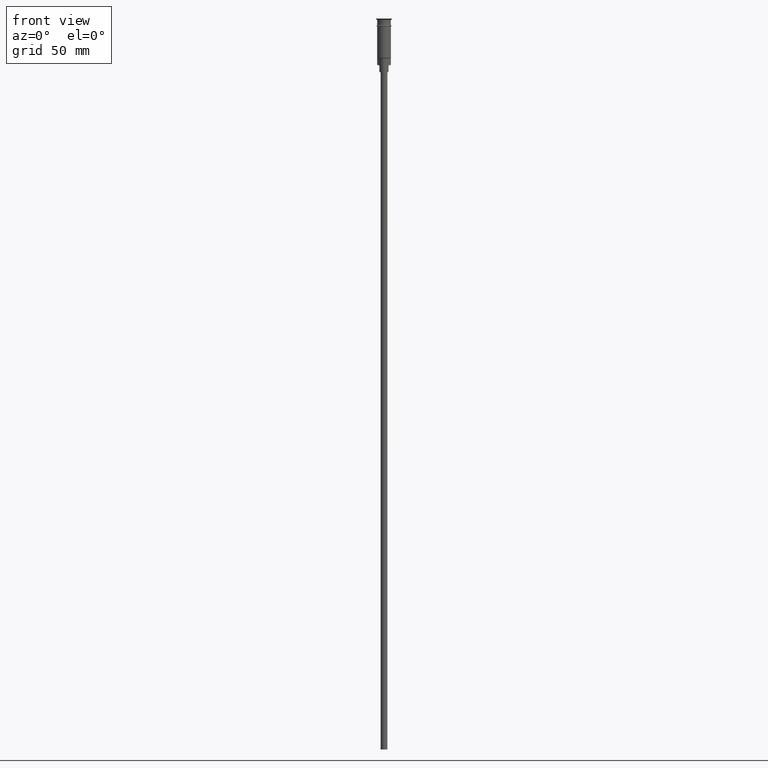
[diagram: clean part render]
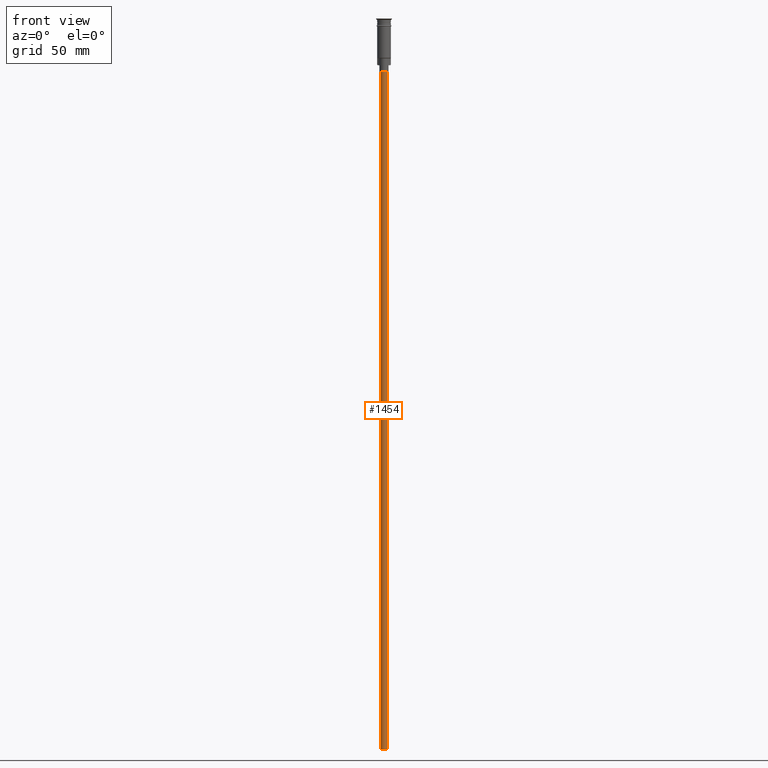
[diagram: same view with one face highlighted and labeled with its STEP entity id]
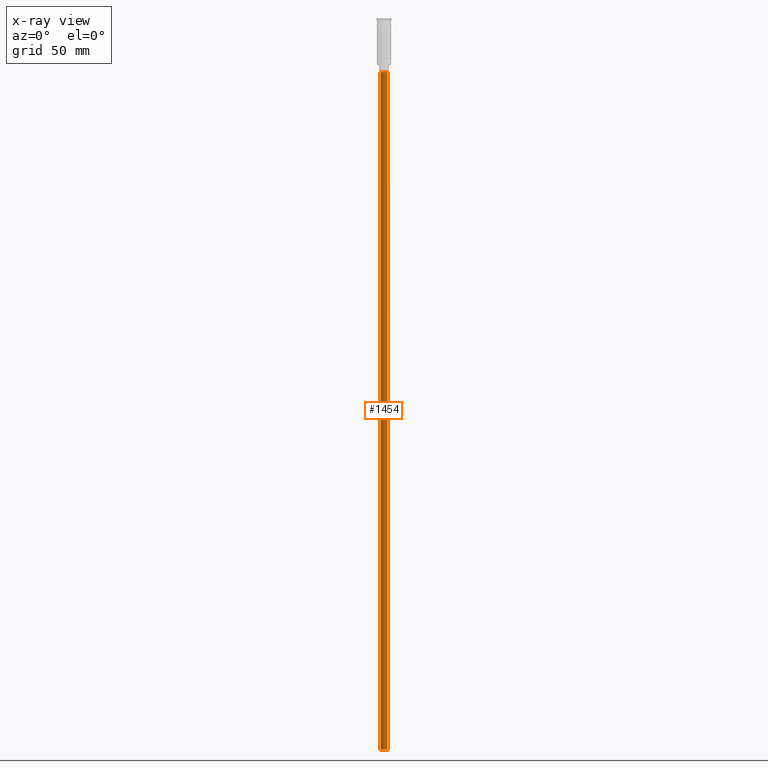
[diagram: x-ray of the same camera — body ghosted, the highlighted face saturated]
A machine part, front view. The second image highlights one B-rep face of the part: STEP entity #1454.
The next image is the same camera in x-ray: the body ghosted, the highlighted face saturated — about 0% of this face is hidden behind the body in this view.
In plain terms, the highlighted cylindrical surface (edge-blend (fillet) strip) has radius 1.5 mm, axis along (-0, -0, 1).
Its self-contained STEP definition (entity closure, byte-faithful):
#45 = VERTEX_POINT ( 'NONE', #288 ) ;
#59 = CARTESIAN_POINT ( 'NONE',  ( 0.000000000000000000, 0.000000000000000000, -23.50000000000000000 ) ) ;
#135 = CARTESIAN_POINT ( 'NONE',  ( -1.500000000000000222, 1.836970198721030181E-16, -320.5000000000000000 ) ) ;
#162 = CARTESIAN_POINT ( 'NONE',  ( 0.000000000000000000, 0.000000000000000000, -320.5000000000000000 ) ) ;
#209 = DIRECTION ( 'NONE',  ( -0.000000000000000000, -0.000000000000000000, 1.000000000000000000 ) ) ;
#237 = EDGE_LOOP ( 'NONE', ( #593, #1414, #849, #809 ) ) ;
#254 = DIRECTION ( 'NONE',  ( -0.000000000000000000, -0.000000000000000000, 1.000000000000000000 ) ) ;
#288 = CARTESIAN_POINT ( 'NONE',  ( -1.500000000000000222, 1.836970198721030181E-16, -320.5000000000000000 ) ) ;
#325 = FACE_OUTER_BOUND ( 'NONE', #237, .T. ) ;
#360 = EDGE_CURVE ( 'NONE', #1471, #45, #1239, .T. ) ;
#432 = CIRCLE ( 'NONE', #1066, 1.500000000000000222 ) ;
#450 = CARTESIAN_POINT ( 'NONE',  ( -1.500000000000000222, 1.836970198721030181E-16, -23.50000000000000000 ) ) ;
#478 = LINE ( 'NONE', #135, #1373 ) ;
#519 = EDGE_CURVE ( 'NONE', #695, #1125, #432, .T. ) ;
#548 = DIRECTION ( 'NONE',  ( 0.000000000000000000, 0.000000000000000000, -1.000000000000000000 ) ) ;
#565 = EDGE_CURVE ( 'NONE', #1471, #695, #675, .T. ) ;
#593 = ORIENTED_EDGE ( 'NONE', *, *, #1512, .F. ) ;
#638 = DIRECTION ( 'NONE',  ( 0.000000000000000000, 0.000000000000000000, -1.000000000000000000 ) ) ;
#665 = DIRECTION ( 'NONE',  ( -0.000000000000000000, -0.000000000000000000, 1.000000000000000000 ) ) ;
#675 = LINE ( 'NONE', #1299, #1041 ) ;
#695 = VERTEX_POINT ( 'NONE', #1443 ) ;
#701 = DIRECTION ( 'NONE',  ( 1.000000000000000000, 0.000000000000000000, 0.000000000000000000 ) ) ;
#717 = AXIS2_PLACEMENT_3D ( 'NONE', #162, #638, #1509 ) ;
#809 = ORIENTED_EDGE ( 'NONE', *, *, #519, .T. ) ;
#830 = CYLINDRICAL_SURFACE ( 'NONE', #1502, 1.500000000000000222 ) ;
#849 = ORIENTED_EDGE ( 'NONE', *, *, #565, .T. ) ;
#1041 = VECTOR ( 'NONE', #665, 1000.000000000000000 ) ;
#1066 = AXIS2_PLACEMENT_3D ( 'NONE', #59, #548, #1196 ) ;
#1125 = VERTEX_POINT ( 'NONE', #450 ) ;
#1196 = DIRECTION ( 'NONE',  ( -1.000000000000000000, 0.000000000000000000, 0.000000000000000000 ) ) ;
#1239 = CIRCLE ( 'NONE', #717, 1.500000000000000222 ) ;
#1299 = CARTESIAN_POINT ( 'NONE',  ( 1.500000000000000222, 0.000000000000000000, -320.5000000000000000 ) ) ;
#1317 = CARTESIAN_POINT ( 'NONE',  ( 0.000000000000000000, 0.000000000000000000, -320.5000000000000000 ) ) ;
#1373 = VECTOR ( 'NONE', #254, 1000.000000000000000 ) ;
#1414 = ORIENTED_EDGE ( 'NONE', *, *, #360, .F. ) ;
#1443 = CARTESIAN_POINT ( 'NONE',  ( 1.500000000000000222, 0.000000000000000000, -23.50000000000000000 ) ) ;
#1454 = ADVANCED_FACE ( 'NONE', ( #325 ), #830, .T. ) ;
#1470 = CARTESIAN_POINT ( 'NONE',  ( 1.500000000000000222, 0.000000000000000000, -320.5000000000000000 ) ) ;
#1471 = VERTEX_POINT ( 'NONE', #1470 ) ;
#1502 = AXIS2_PLACEMENT_3D ( 'NONE', #1317, #209, #701 ) ;
#1509 = DIRECTION ( 'NONE',  ( -1.000000000000000000, 0.000000000000000000, 0.000000000000000000 ) ) ;
#1512 = EDGE_CURVE ( 'NONE', #45, #1125, #478, .T. ) ;